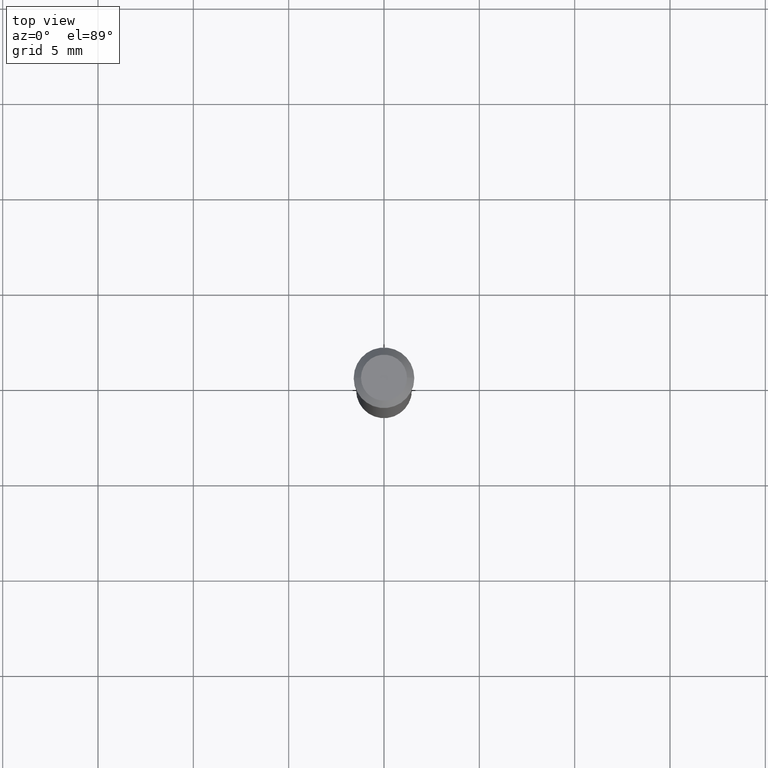
[diagram: clean part render]
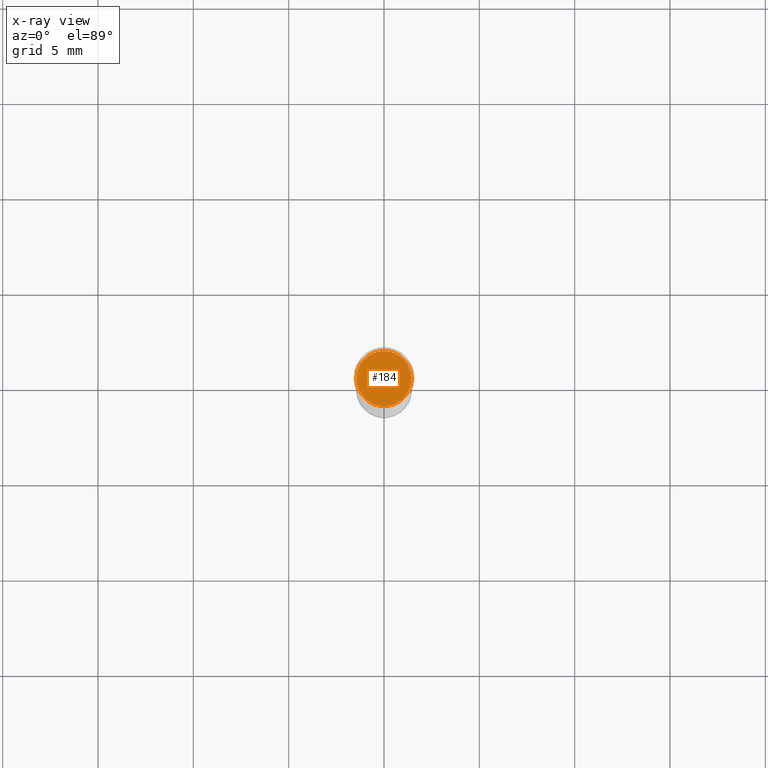
[diagram: x-ray — body ghosted, one internal face saturated and labeled with its STEP entity id]
A machine part, top view, then the same camera in x-ray: the body is ghosted and one INTERNAL B-rep face — a face not visible from any outside direction — is saturated and labeled: STEP entity #184.
In plain terms, the highlighted planar face has unit normal (-0, 0, 1).
Its self-contained STEP definition (entity closure, byte-faithful):
#17 = CARTESIAN_POINT ( 'NONE',  ( 2.934562567422172828E-30, -4.189777606611787045E-16, -0.1200000000000003564 ) ) ;
#23 = FACE_OUTER_BOUND ( 'NONE', #109, .T. ) ;
#35 = AXIS2_PLACEMENT_3D ( 'NONE', #193, #224, #453 ) ;
#83 = DIRECTION ( 'NONE',  ( 1.000000000000000000, -6.982962677686265922E-15, 0.000000000000000000 ) ) ;
#109 = EDGE_LOOP ( 'NONE', ( #442, #231 ) ) ;
#124 = DIRECTION ( 'NONE',  ( -2.438088387897960049E-29, 3.491481338843145188E-15, 1.000000000000000000 ) ) ;
#150 = CIRCLE ( 'NONE', #35, 0.05700000000000000205 ) ;
#159 = PLANE ( 'NONE',  #267 ) ;
#171 = VERTEX_POINT ( 'NONE', #325 ) ;
#184 = ADVANCED_FACE ( 'NONE', ( #23 ), #159, .F. ) ;
#191 = VERTEX_POINT ( 'NONE', #447 ) ;
#193 = CARTESIAN_POINT ( 'NONE',  ( 2.934562567422172828E-30, -4.189777606611787045E-16, -0.1200000000000003564 ) ) ;
#213 = AXIS2_PLACEMENT_3D ( 'NONE', #17, #334, #83 ) ;
#224 = DIRECTION ( 'NONE',  ( -2.445468806185136597E-29, 3.491481338843145583E-15, 1.000000000000000000 ) ) ;
#231 = ORIENTED_EDGE ( 'NONE', *, *, #247, .F. ) ;
#247 = EDGE_CURVE ( 'NONE', #171, #191, #150, .T. ) ;
#257 = DIRECTION ( 'NONE',  ( 1.000000000000000000, -6.982962677686265922E-15, 4.876176775795935793E-29 ) ) ;
#267 = AXIS2_PLACEMENT_3D ( 'NONE', #446, #124, #257 ) ;
#291 = EDGE_CURVE ( 'NONE', #191, #171, #347, .T. ) ;
#325 = CARTESIAN_POINT ( 'NONE',  ( -0.05700000000000000205, -1.131917410381042142E-17, -0.1200000000000003564 ) ) ;
#334 = DIRECTION ( 'NONE',  ( -2.445468806185136597E-29, 3.491481338843145583E-15, 1.000000000000000000 ) ) ;
#347 = CIRCLE ( 'NONE', #213, 0.05700000000000000205 ) ;
#442 = ORIENTED_EDGE ( 'NONE', *, *, #291, .F. ) ;
#446 = CARTESIAN_POINT ( 'NONE',  ( 2.934562567422172828E-30, -4.189777606611787045E-16, -0.1200000000000003564 ) ) ;
#447 = CARTESIAN_POINT ( 'NONE',  ( 0.05700000000000000205, -8.170066332892958163E-16, -0.1200000000000003564 ) ) ;
#453 = DIRECTION ( 'NONE',  ( 1.000000000000000000, -6.982962677686265922E-15, 0.000000000000000000 ) ) ;